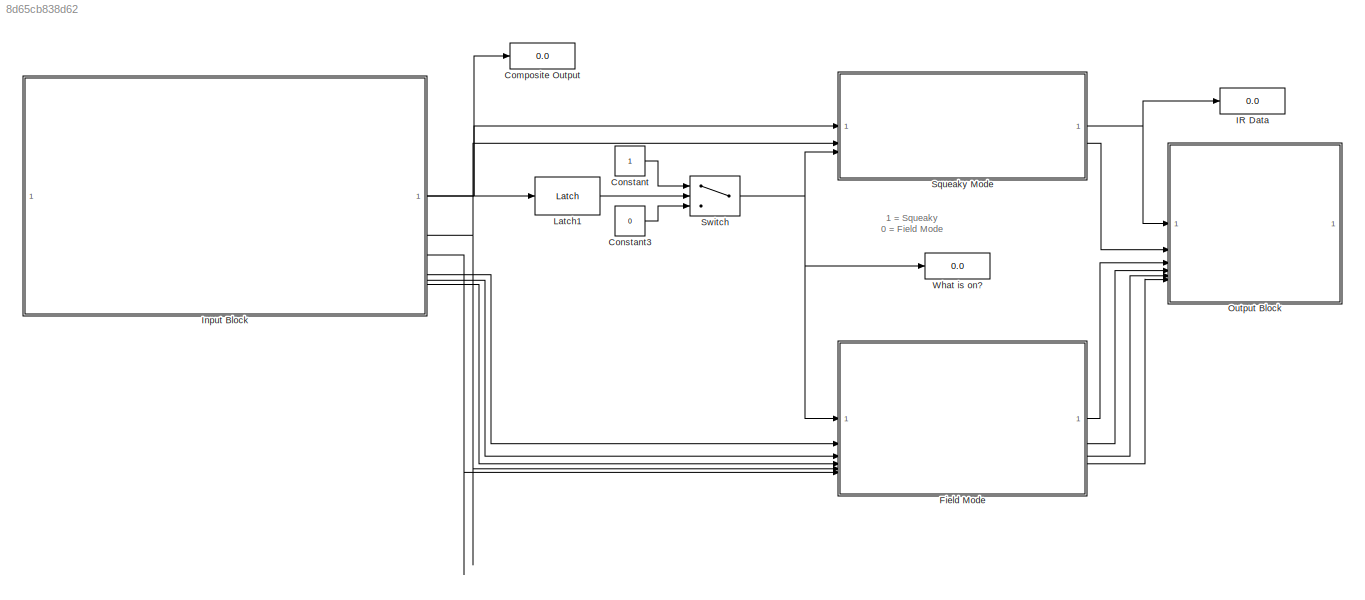
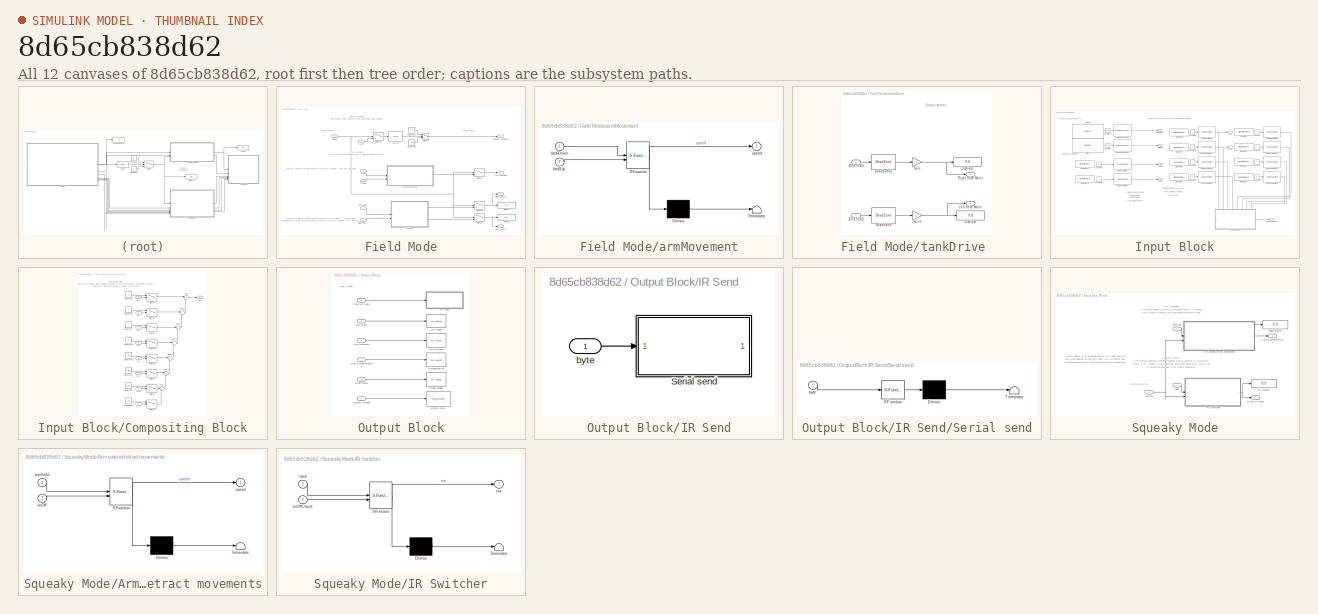
[diagram: thumbnail index - all 12 canvases of the model, root first then tree order]
MODEL slx_8d65cb838d62
KIND model
CONFIG AbsTol = auto
CONFIG EnableMultiTasking = off
CONFIG FixedStep = auto
CONFIG MaxStep = auto
CONFIG MinStep = auto
CONFIG RelTol = 1e-3
CONFIG SampleTimeConstraint = Unconstrained
CONFIG SolverName = VariableStepAuto
CONFIG StartTime = 0.0
CONFIG StopTime = 10.0
BLOCK [Display] Composite Output
  Decimation = 1
BLOCK [Constant] Constant
BLOCK [Constant] Constant3
  Value = 0
BLOCK [SubSystem] Field Mode
BLOCK [Inport] Field Mode/5-Down
  Port = 4
BLOCK [Inport] Field Mode/5-Up
  Port = 3
BLOCK [Inport] Field Mode/7-Left
  Port = 2
BLOCK [Outport] Field Mode/Arm Up//Down
  Port = 3
BLOCK [Outport] Field Mode/Battery Dropper
  Port = 2
BLOCK [Constant] Field Mode/Constant3
  Value = 90
BLOCK [Constant] Field Mode/Constant4
  Value = -90
BLOCK [Display] Field Mode/Display1
  Decimation = 1
BLOCK [Display] Field Mode/Display2
  Decimation = 1
BLOCK [Reference] Field Mode/Latch1  REF=vexcommonlib/Latch
  SourceBlock = vexcommonlib/Latch
  SourceType = Latch
BLOCK [Outport] Field Mode/Left Motor
BLOCK [Inport] Field Mode/LeftStick-y
  Port = 5
BLOCK [Inport] Field Mode/On//Off
BLOCK [Outport] Field Mode/Right Motor
  Port = 4
BLOCK [Inport] Field Mode/RightStick-y
  Port = 6
BLOCK [Switch] Field Mode/Switch1
  Criteria = u2 > Threshold
  InputSameDT = off
  SaturateOnIntegerOverflow = off
BLOCK [Switch] Field Mode/Switch2
  Criteria = u2 > Threshold
  InputSameDT = off
  SaturateOnIntegerOverflow = off
BLOCK [Switch] Field Mode/Switch3
  Criteria = u2 > Threshold
  InputSameDT = off
  SaturateOnIntegerOverflow = off
BLOCK [Switch] Field Mode/Switch4
  InputSameDT = off
  SaturateOnIntegerOverflow = off
  Threshold = 1
BLOCK [Switch] Field Mode/Switch5
  Criteria = u2 > Threshold
  InputSameDT = off
  SaturateOnIntegerOverflow = off
BLOCK [SubSystem] Field Mode/armMovement
  ErrorFcn = Stateflow.Translate.translate
  PermitHierarchicalResolution = ExplicitOnly
  SFBlockType = Chart
  TreatAsAtomicUnit = on
BLOCK [Demux] Field Mode/armMovement/ Demux 
  Outputs = 1
BLOCK [S-Function] Field Mode/armMovement/ SFunction 
  EnableBusSupport = on
  FunctionName = sf_sfun
  PortCounts = [2 2]
  SFcnIsStateOwnerBlock = off
  SFunctionDeploymentMode = off
  Tag = Stateflow S-Function 13
BLOCK [Terminator] Field Mode/armMovement/ Terminator 
BLOCK [Inport] Field Mode/armMovement/btn6Down
BLOCK [Inport] Field Mode/armMovement/btn6Up
  Port = 2
BLOCK [Outport] Field Mode/armMovement/speed
BLOCK [SubSystem] Field Mode/tankDrive 
  TreatAsAtomicUnit = on
BLOCK [DeadZone] Field Mode/tankDrive /Deadband
  LowerValue = -9
  UpperValue = 9
BLOCK [DeadZone] Field Mode/tankDrive /Deadband1
  LowerValue = -9
  UpperValue = 9
BLOCK [Display] Field Mode/tankDrive /Display1
  Decimation = 1
BLOCK [Display] Field Mode/tankDrive /Display2
  Decimation = 1
BLOCK [Gain] Field Mode/tankDrive /Gain
  Gain = -1
BLOCK [Gain] Field Mode/tankDrive /Gain1
  Gain = -1
BLOCK [Inport] Field Mode/tankDrive /JOYSTICK2
  Port = 2
BLOCK [Inport] Field Mode/tankDrive /JOYSTICK3
BLOCK [Outport] Field Mode/tankDrive /Left Drive Motor
  Port = 2
BLOCK [Outport] Field Mode/tankDrive /Right Drive Motor
BLOCK [Display] IR Data 
  Decimation = 1
  Format = hex (Stored Integer)
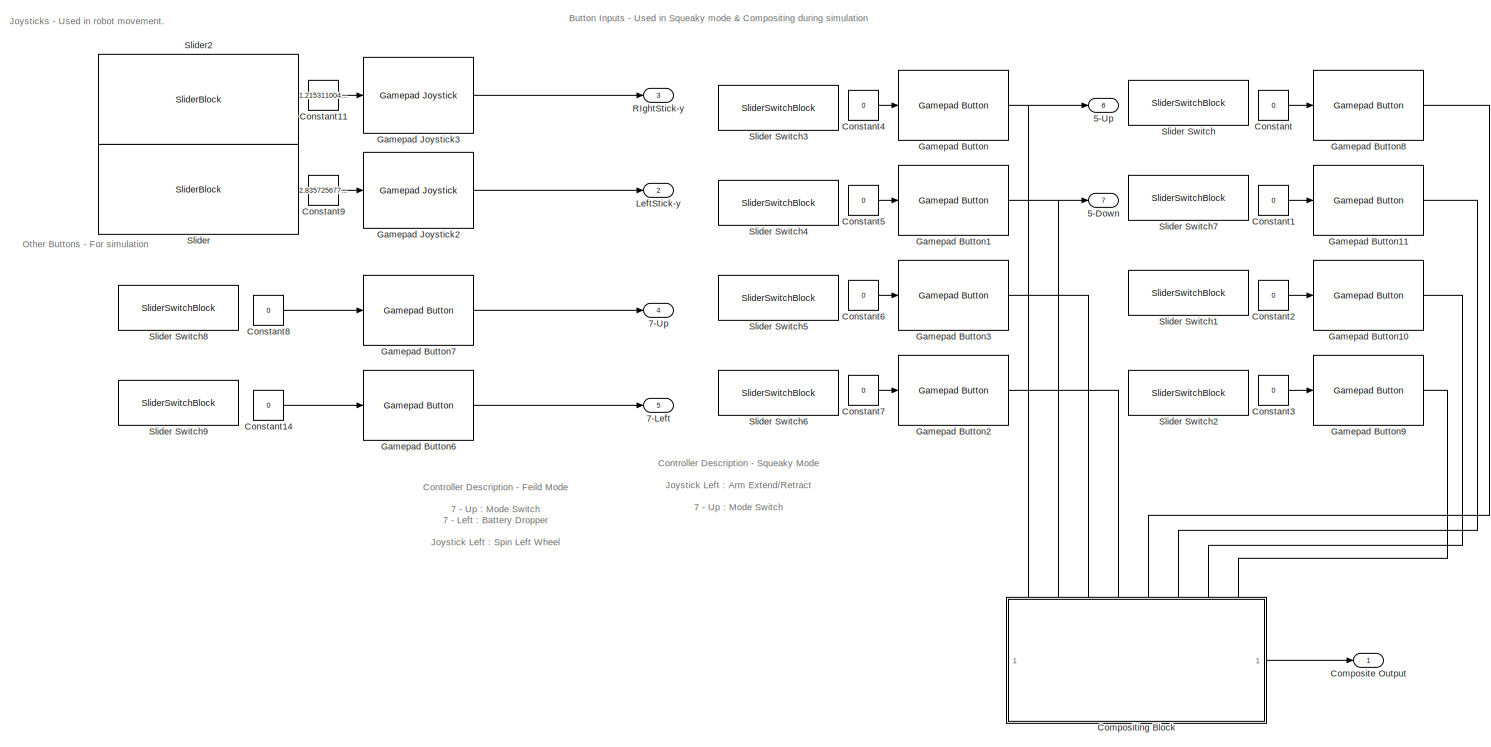
[diagram: Input Block - part 1/1, most of the canvas]
BLOCK [SubSystem] Input Block
BLOCK [Outport] Input Block/5-Down
  Port = 7
BLOCK [Outport] Input Block/5-Up
  Port = 6
BLOCK [Outport] Input Block/7-Left
  Port = 5
BLOCK [Outport] Input Block/7-Up
  Port = 4
BLOCK [Outport] Input Block/Composite Output
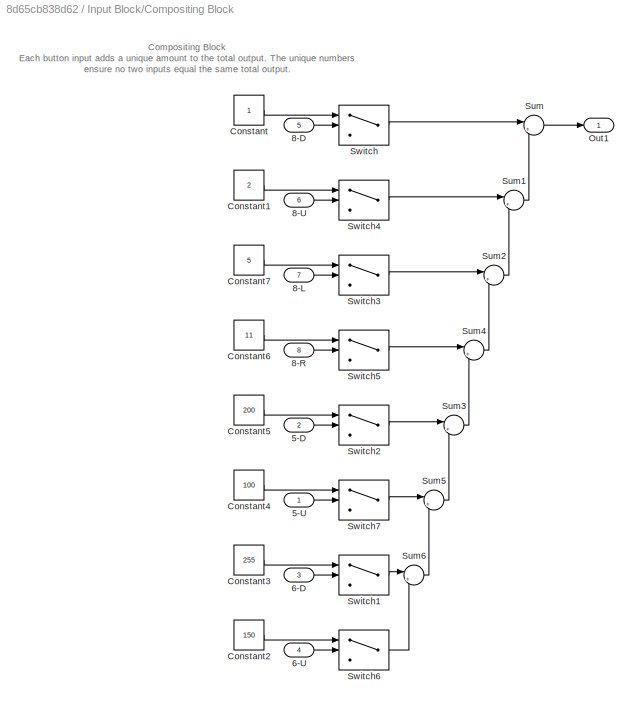
BLOCK [SubSystem] Input Block/Compositing Block
  PortSchema = {"entries":[{"content":{"sides":[{"content":{"connectorIds":[]},"type":"ConnectorPlacement.EquallySpacedRectSide","uuid":"9d2b5337-c4d4-4923-a699-a47fc21a7185"},{"content":{"connectorIds":["Out1"],"side":"RIGHT"},"type":"ConnectorPlacement.EquallySpacedRectSide","uuid":"56c06069-3940-4c56-b8fd-a4c3d4ffc63d"},{"content":{"connectorIds":["In1","In2","In3","In4","In5","In6","In7","In8"],"side":"TOP"}...<+282ch>
BLOCK [Inport] Input Block/Compositing Block/5-D
  Port = 2
BLOCK [Inport] Input Block/Compositing Block/5-U
BLOCK [Inport] Input Block/Compositing Block/6-D
  Port = 3
BLOCK [Inport] Input Block/Compositing Block/6-U
  Port = 4
BLOCK [Inport] Input Block/Compositing Block/8-D
  Port = 5
BLOCK [Inport] Input Block/Compositing Block/8-L
  Port = 7
BLOCK [Inport] Input Block/Compositing Block/8-R
  Port = 8
BLOCK [Inport] Input Block/Compositing Block/8-U
  Port = 6
BLOCK [Constant] Input Block/Compositing Block/Constant
BLOCK [Constant] Input Block/Compositing Block/Constant1
  Value = 2
BLOCK [Constant] Input Block/Compositing Block/Constant2
  Value = 150
BLOCK [Constant] Input Block/Compositing Block/Constant3
  Value = 255
BLOCK [Constant] Input Block/Compositing Block/Constant4
  Value = 100
BLOCK [Constant] Input Block/Compositing Block/Constant5
  Value = 200
BLOCK [Constant] Input Block/Compositing Block/Constant6
  Value = 11
BLOCK [Constant] Input Block/Compositing Block/Constant7
  Value = 5
BLOCK [Outport] Input Block/Compositing Block/Out1
BLOCK [Sum] Input Block/Compositing Block/Sum
  Inputs = |++
BLOCK [Sum] Input Block/Compositing Block/Sum1
  Inputs = |++
BLOCK [Sum] Input Block/Compositing Block/Sum2
  Inputs = |++
BLOCK [Sum] Input Block/Compositing Block/Sum3
  Inputs = |++
BLOCK [Sum] Input Block/Compositing Block/Sum4
  Inputs = |++
BLOCK [Sum] Input Block/Compositing Block/Sum5
  Inputs = |++
BLOCK [Sum] Input Block/Compositing Block/Sum6
  Inputs = |++
BLOCK [Switch] Input Block/Compositing Block/Switch
  Criteria = u2 > Threshold
  InputSameDT = off
  SaturateOnIntegerOverflow = off
BLOCK [Switch] Input Block/Compositing Block/Switch1
  Criteria = u2 > Threshold
  InputSameDT = off
  SaturateOnIntegerOverflow = off
BLOCK [Switch] Input Block/Compositing Block/Switch2
  Criteria = u2 > Threshold
  InputSameDT = off
  SaturateOnIntegerOverflow = off
BLOCK [Switch] Input Block/Compositing Block/Switch3
  Criteria = u2 > Threshold
  InputSameDT = off
  SaturateOnIntegerOverflow = off
BLOCK [Switch] Input Block/Compositing Block/Switch4
  Criteria = u2 > Threshold
  InputSameDT = off
  SaturateOnIntegerOverflow = off
BLOCK [Switch] Input Block/Compositing Block/Switch5
  Criteria = u2 > Threshold
  InputSameDT = off
  SaturateOnIntegerOverflow = off
BLOCK [Switch] Input Block/Compositing Block/Switch6
  Criteria = u2 > Threshold
  InputSameDT = off
  SaturateOnIntegerOverflow = off
BLOCK [Switch] Input Block/Compositing Block/Switch7
  Criteria = u2 > Threshold
  InputSameDT = off
  SaturateOnIntegerOverflow = off
BLOCK [Constant] Input Block/Constant
  Value = 0
BLOCK [Constant] Input Block/Constant1
  Value = 0
BLOCK [Constant] Input Block/Constant11
  Value = 1.215311004784695
BLOCK [Constant] Input Block/Constant14
  Value = 0
BLOCK [Constant] Input Block/Constant2
  Value = 0
BLOCK [Constant] Input Block/Constant3
  Value = 0
BLOCK [Constant] Input Block/Constant4
  Value = 0
BLOCK [Constant] Input Block/Constant5
  Value = 0
BLOCK [Constant] Input Block/Constant6
  Value = 0
BLOCK [Constant] Input Block/Constant7
  Value = 0
BLOCK [Constant] Input Block/Constant8
  Value = 0
BLOCK [Constant] Input Block/Constant9
  Value = 2.835725677830936
BLOCK [Reference] Input Block/Gamepad Button  REF=vexarmcortexlib/Gamepad/Gamepad Button
  SourceBlock = vexarmcortexlib/Gamepad/Gamepad Button
  SourceType = Gamepad Button
BLOCK [Reference] Input Block/Gamepad Button1  REF=vexarmcortexlib/Gamepad/Gamepad Button
  SourceBlock = vexarmcortexlib/Gamepad/Gamepad Button
  SourceType = Gamepad Button
BLOCK [Reference] Input Block/Gamepad Button10  REF=vexarmcortexlib/Gamepad/Gamepad Button
  SourceBlock = vexarmcortexlib/Gamepad/Gamepad Button
  SourceType = Gamepad Button
BLOCK [Reference] Input Block/Gamepad Button11  REF=vexarmcortexlib/Gamepad/Gamepad Button
  SourceBlock = vexarmcortexlib/Gamepad/Gamepad Button
  SourceType = Gamepad Button
BLOCK [Reference] Input Block/Gamepad Button2  REF=vexarmcortexlib/Gamepad/Gamepad Button
  SourceBlock = vexarmcortexlib/Gamepad/Gamepad Button
  SourceType = Gamepad Button
BLOCK [Reference] Input Block/Gamepad Button3  REF=vexarmcortexlib/Gamepad/Gamepad Button
  SourceBlock = vexarmcortexlib/Gamepad/Gamepad Button
  SourceType = Gamepad Button
BLOCK [Reference] Input Block/Gamepad Button6  REF=vexarmcortexlib/Gamepad/Gamepad Button
  SourceBlock = vexarmcortexlib/Gamepad/Gamepad Button
  SourceType = Gamepad Button
BLOCK [Reference] Input Block/Gamepad Button7  REF=vexarmcortexlib/Gamepad/Gamepad Button
  SourceBlock = vexarmcortexlib/Gamepad/Gamepad Button
  SourceType = Gamepad Button
BLOCK [Reference] Input Block/Gamepad Button8  REF=vexarmcortexlib/Gamepad/Gamepad Button
  SourceBlock = vexarmcortexlib/Gamepad/Gamepad Button
  SourceType = Gamepad Button
BLOCK [Reference] Input Block/Gamepad Button9  REF=vexarmcortexlib/Gamepad/Gamepad Button
  SourceBlock = vexarmcortexlib/Gamepad/Gamepad Button
  SourceType = Gamepad Button
BLOCK [Reference] Input Block/Gamepad Joystick2  REF=vexarmcortexlib/Gamepad/Gamepad Joystick
  SourceBlock = vexarmcortexlib/Gamepad/Gamepad Joystick
  SourceType = Gamepad Joystick
BLOCK [Reference] Input Block/Gamepad Joystick3  REF=vexarmcortexlib/Gamepad/Gamepad Joystick
  SourceBlock = vexarmcortexlib/Gamepad/Gamepad Joystick
  SourceType = Gamepad Joystick
BLOCK [Outport] Input Block/LeftStick-y
  Port = 2
BLOCK [Outport] Input Block/RIghtStick-y
  Port = 3
BLOCK [SliderBlock] Input Block/Slider
  ScaleMax = 127
  ScaleMin = -127
BLOCK [SliderSwitchBlock] Input Block/Slider Switch
BLOCK [SliderSwitchBlock] Input Block/Slider Switch1
BLOCK [SliderSwitchBlock] Input Block/Slider Switch2
BLOCK [SliderSwitchBlock] Input Block/Slider Switch3
BLOCK [SliderSwitchBlock] Input Block/Slider Switch4
BLOCK [SliderSwitchBlock] Input Block/Slider Switch5
BLOCK [SliderSwitchBlock] Input Block/Slider Switch6
BLOCK [SliderSwitchBlock] Input Block/Slider Switch7
BLOCK [SliderSwitchBlock] Input Block/Slider Switch8
BLOCK [SliderSwitchBlock] Input Block/Slider Switch9
BLOCK [SliderBlock] Input Block/Slider2
  ScaleMax = 127
  ScaleMin = -127
BLOCK [Reference] Latch1  REF=RoboticsPlayground/Utilities and Hardware/Latch
  SourceBlock = RoboticsPlayground/Utilities and Hardware/Latch
  SourceProductName = Robotics Playground
BLOCK [SubSystem] Output Block
BLOCK [Reference] Output Block/Arm Up Down  REF=vexarmcortexlib/Actuators/DC Motor
  SourceBlock = vexarmcortexlib/Actuators/DC Motor
  SourceType = DC Motor
BLOCK [Inport] Output Block/Arm Up//Down 
  Port = 5
BLOCK [Reference] Output Block/Battery Drop  REF=vexarmcortexlib/Actuators/Servo Motor
  SourceBlock = vexarmcortexlib/Actuators/Servo Motor
  SourceType = Servo Motor
BLOCK [Inport] Output Block/Battery Dropper
  Port = 4
BLOCK [Inport] Output Block/Claw Extend//Retract
  Port = 2
BLOCK [Reference] Output Block/Extend//Retract  REF=vexarmcortexlib/Actuators/DC Motor
  SourceBlock = vexarmcortexlib/Actuators/DC Motor
  SourceType = DC Motor
BLOCK [Inport] Output Block/Final IR Data
BLOCK [SubSystem] Output Block/IR Send
BLOCK [SubSystem] Output Block/IR Send/Serial send
  ErrorFcn = Stateflow.Translate.translate
  PermitHierarchicalResolution = ExplicitOnly
  SFBlockType = MATLAB Function
  TreatAsAtomicUnit = on
BLOCK [Demux] Output Block/IR Send/Serial send/ Demux 
  Outputs = 1
BLOCK [S-Function] Output Block/IR Send/Serial send/ SFunction 
  EnableBusSupport = on
  FunctionName = sf_sfun
  PortCounts = [1 1]
  SFcnIsStateOwnerBlock = off
  SFunctionDeploymentMode = off
  Tag = Stateflow S-Function 3
BLOCK [Terminator] Output Block/IR Send/Serial send/ Terminator 
BLOCK [Inport] Output Block/IR Send/Serial send/byte
BLOCK [Inport] Output Block/IR Send/byte
  OutDataTypeStr = uint8
  PortDimensions = [1 1]
BLOCK [Inport] Output Block/Left Motor
  Port = 3
BLOCK [Reference] Output Block/Left Wheel  REF=vexarmcortexlib/Actuators/DC Motor
  SourceBlock = vexarmcortexlib/Actuators/DC Motor
  SourceType = DC Motor
BLOCK [Inport] Output Block/Right Motor
  Port = 6
BLOCK [Reference] Output Block/Right Wheel  REF=vexarmcortexlib/Actuators/DC Motor
  SourceBlock = vexarmcortexlib/Actuators/DC Motor
  SourceType = DC Motor
BLOCK [SubSystem] Squeaky Mode
BLOCK [SubSystem] Squeaky Mode/Arm extend//retract movements
  ErrorFcn = Stateflow.Translate.translate
  PermitHierarchicalResolution = ExplicitOnly
  SFBlockType = Chart
  TreatAsAtomicUnit = on
BLOCK [Demux] Squeaky Mode/Arm extend//retract movements/ Demux 
  Outputs = 1
BLOCK [S-Function] Squeaky Mode/Arm extend//retract movements/ SFunction 
  EnableBusSupport = on
  FunctionName = sf_sfun
  PortCounts = [2 2]
  SFcnIsStateOwnerBlock = off
  SFunctionDeploymentMode = off
  Tag = Stateflow S-Function 2
BLOCK [Terminator] Squeaky Mode/Arm extend//retract movements/ Terminator 
BLOCK [Inport] Squeaky Mode/Arm extend//retract movements/joystickL
BLOCK [Inport] Squeaky Mode/Arm extend//retract movements/onOff
  Port = 2
BLOCK [Outport] Squeaky Mode/Arm extend//retract movements/speed
BLOCK [Outport] Squeaky Mode/Claw Extend//Retract
  Port = 2
BLOCK [Outport] Squeaky Mode/Final IR Data
BLOCK [SubSystem] Squeaky Mode/IR Switcher
  ErrorFcn = Stateflow.Translate.translate
  PermitHierarchicalResolution = ExplicitOnly
  SFBlockType = Chart
  TreatAsAtomicUnit = on
BLOCK [Demux] Squeaky Mode/IR Switcher/ Demux 
  Outputs = 1
BLOCK [S-Function] Squeaky Mode/IR Switcher/ SFunction 
  EnableBusSupport = on
  FunctionName = sf_sfun
  PortCounts = [2 2]
  SFcnIsStateOwnerBlock = off
  SFunctionDeploymentMode = off
  Tag = Stateflow S-Function 6
BLOCK [Terminator] Squeaky Mode/IR Switcher/ Terminator 
BLOCK [Inport] Squeaky Mode/IR Switcher/input
BLOCK [Inport] Squeaky Mode/IR Switcher/onOffCheck
  Port = 2
BLOCK [Outport] Squeaky Mode/IR Switcher/out
BLOCK [Display] Squeaky Mode/IR display
  Decimation = 1
  Format = hex (Stored Integer)
BLOCK [Inport] Squeaky Mode/JoystickL
  Port = 2
BLOCK [Inport] Squeaky Mode/On//Off
  Port = 3
BLOCK [Inport] Squeaky Mode/lnput
BLOCK [Display] Squeaky Mode/speed display
  Decimation = 1
BLOCK [Switch] Switch
  Criteria = u2 ~= 0
  InputSameDT = off
  SaturateOnIntegerOverflow = off
BLOCK [Display] What is on?
  Decimation = 1
ANNOTATION (root): Mode switcher When the button 7-Up is pressed the output switches from 0 to 1 or vice versa
ANNOTATION (root): 1 = Squeaky 0 = Field Mode
ANNOTATION Field Mode: Tank Drive Uses two joystick inputs to control the drive motors and move the robot.
ANNOTATION Field Mode: The part shown in this illustration is the Battery Dropper. The code controlling this part can be found in the top lavender box
ANNOTATION Field Mode: The part shown in this illustration is the arm of our robot. It is used when manipulating the order boxes and when attaching the custom squeaky arm. The code controlling this part can be found in the middle blue box.
ANNOTATION Field Mode: Arm Up/Down This system uses two buttons to raise and lower the arm.
ANNOTATION Field Mode: Battery Dropper This system spins a servo to put batteries onto Squeaky.
ANNOTATION Field Mode: On/Off switch
ANNOTATION Field Mode: Output Blocks
ANNOTATION Field Mode/tankDrive : Output section
ANNOTATION Input Block: Button Inputs - Used in Squeaky mode & Compositing during simulation
ANNOTATION Input Block: Controller Description - Squeaky Mode Joystick Left : Arm Extend/Retract 7 - Up : Mode Switch 5 - Up : Drive Speed Low 5 - Down : Drive Speed High 5 - Up & 5 - Down : Drive Speed Medium 6 - Up : Rotation Speed Low 6 - Down : Rotation Speed High 6 - Up & 6 - Down : Rotation Speed Medium 8 - Up : Test IR Signal 8 - Down : Middle Stick to Drive 8 - Right : Middle Stick to Rotate 8 - Left : Middle Sti...<+10ch>
ANNOTATION Input Block: Controller Description - Feild Mode 7 - Up : Mode Switch 7 - Left : Battery Dropper Joystick Left : Spin Left Wheel Joystick Right : Spin RIght Wheel 5 - Up : Arm Up 6 - Down : Arm Down
ANNOTATION Input Block: Joysticks - Used in robot movement.
ANNOTATION Input Block: Other Buttons - For simulation
ANNOTATION Input Block/Compositing Block: Compositing Block Each button input adds a unique amount to the total output. The unique numbers ensure no two inputs equal the same total output.
ANNOTATION Output Block: Final Outputs
ANNOTATION Squeaky Mode: The part shown is the telescoping arm. Our team uses this part when opperating the field robot from the control box. The code controlling it can be found in the top lavender box
ANNOTATION Squeaky Mode: Arm Telescope This system uses a joystick to telescope the arm in and out. This is used to interact with the gamefield's control box.
ANNOTATION Squeaky Mode: On/Off Switch
ANNOTATION Squeaky Mode: Squeaky Controls This system controls whether Squeaky's central joystick is in the drive, rotate, or lift modes & the Speed that each mode operates at. This is set by the buttons defined in the "Inputs" subsystem.
LINE Constant3:1 -> Switch:3
LINE Constant:1 -> Switch:1
LINE Field Mode/5-Down:1 -> Field Mode/armMovement:2
LINE Field Mode/5-Up:1 -> Field Mode/armMovement:1
LINE Field Mode/7-Left:1 -> Field Mode/Switch5:3
LINE Field Mode/Constant3:1 -> Field Mode/Switch4:1
LINE Field Mode/Constant4:1 -> Field Mode/Switch4:3
LINE Field Mode/Latch1:1 -> Field Mode/Switch4:2
LINE Field Mode/LeftStick-y:1 -> Field Mode/tankDrive :1
NET Field Mode/On//Off:1 -> Field Mode/Switch1:2, Field Mode/Switch2:2, Field Mode/Switch3:2, Field Mode/Switch5:2
LINE Field Mode/RightStick-y:1 -> Field Mode/tankDrive :2
LINE Field Mode/Switch1:1 -> Field Mode/Arm Up//Down:1
NET Field Mode/Switch2:1 -> Field Mode/Display1:1, Field Mode/Left Motor:1
NET Field Mode/Switch3:1 -> Field Mode/Display2:1, Field Mode/Right Motor:1
LINE Field Mode/Switch4:1 -> Field Mode/Battery Dropper:1
LINE Field Mode/Switch5:1 -> Field Mode/Latch1:1
LINE Field Mode/armMovement:1 -> Field Mode/Switch1:3
LINE Field Mode/tankDrive /Deadband1:1 -> Field Mode/tankDrive /Gain:1
LINE Field Mode/tankDrive /Deadband:1 -> Field Mode/tankDrive /Gain1:1
NET Field Mode/tankDrive /Gain1:1 -> Field Mode/tankDrive /Display2:1, Field Mode/tankDrive /Left Drive Motor:1
NET Field Mode/tankDrive /Gain:1 -> Field Mode/tankDrive /Display1:1, Field Mode/tankDrive /Right Drive Motor:1
LINE Field Mode/tankDrive /JOYSTICK2:1 -> Field Mode/tankDrive /Deadband:1
LINE Field Mode/tankDrive /JOYSTICK3:1 -> Field Mode/tankDrive /Deadband1:1
LINE Field Mode/tankDrive :1 -> Field Mode/Switch3:3
LINE Field Mode/tankDrive :2 -> Field Mode/Switch2:3
LINE Field Mode:1 -> Output Block:3
LINE Field Mode:2 -> Output Block:4
LINE Field Mode:3 -> Output Block:5
LINE Field Mode:4 -> Output Block:6
LINE Input Block/Compositing Block/5-D:1 -> Input Block/Compositing Block/Switch2:2
LINE Input Block/Compositing Block/5-U:1 -> Input Block/Compositing Block/Switch7:2
LINE Input Block/Compositing Block/6-D:1 -> Input Block/Compositing Block/Switch1:2
LINE Input Block/Compositing Block/6-U:1 -> Input Block/Compositing Block/Switch6:2
LINE Input Block/Compositing Block/8-D:1 -> Input Block/Compositing Block/Switch:2
LINE Input Block/Compositing Block/8-L:1 -> Input Block/Compositing Block/Switch3:2
LINE Input Block/Compositing Block/8-R:1 -> Input Block/Compositing Block/Switch5:2
LINE Input Block/Compositing Block/8-U:1 -> Input Block/Compositing Block/Switch4:2
LINE Input Block/Compositing Block/Constant1:1 -> Input Block/Compositing Block/Switch4:1
LINE Input Block/Compositing Block/Constant2:1 -> Input Block/Compositing Block/Switch6:1
LINE Input Block/Compositing Block/Constant3:1 -> Input Block/Compositing Block/Switch1:1
LINE Input Block/Compositing Block/Constant4:1 -> Input Block/Compositing Block/Switch7:1
LINE Input Block/Compositing Block/Constant5:1 -> Input Block/Compositing Block/Switch2:1
LINE Input Block/Compositing Block/Constant6:1 -> Input Block/Compositing Block/Switch5:1
LINE Input Block/Compositing Block/Constant7:1 -> Input Block/Compositing Block/Switch3:1
LINE Input Block/Compositing Block/Constant:1 -> Input Block/Compositing Block/Switch:1
LINE Input Block/Compositing Block/Sum1:1 -> Input Block/Compositing Block/Sum:2
LINE Input Block/Compositing Block/Sum2:1 -> Input Block/Compositing Block/Sum1:2
LINE Input Block/Compositing Block/Sum3:1 -> Input Block/Compositing Block/Sum4:2
LINE Input Block/Compositing Block/Sum4:1 -> Input Block/Compositing Block/Sum2:2
LINE Input Block/Compositing Block/Sum5:1 -> Input Block/Compositing Block/Sum3:2
LINE Input Block/Compositing Block/Sum6:1 -> Input Block/Compositing Block/Sum5:2
LINE Input Block/Compositing Block/Sum:1 -> Input Block/Compositing Block/Out1:1
LINE Input Block/Compositing Block/Switch1:1 -> Input Block/Compositing Block/Sum6:1
LINE Input Block/Compositing Block/Switch2:1 -> Input Block/Compositing Block/Sum3:1
LINE Input Block/Compositing Block/Switch3:1 -> Input Block/Compositing Block/Sum2:1
LINE Input Block/Compositing Block/Switch4:1 -> Input Block/Compositing Block/Sum1:1
LINE Input Block/Compositing Block/Switch5:1 -> Input Block/Compositing Block/Sum4:1
LINE Input Block/Compositing Block/Switch6:1 -> Input Block/Compositing Block/Sum6:2
LINE Input Block/Compositing Block/Switch7:1 -> Input Block/Compositing Block/Sum5:1
LINE Input Block/Compositing Block/Switch:1 -> Input Block/Compositing Block/Sum:1
LINE Input Block/Compositing Block:1 -> Input Block/Composite Output:1
LINE Input Block/Constant11:1 -> Input Block/Gamepad Joystick3:1
LINE Input Block/Constant14:1 -> Input Block/Gamepad Button6:1
LINE Input Block/Constant1:1 -> Input Block/Gamepad Button11:1
LINE Input Block/Constant2:1 -> Input Block/Gamepad Button10:1
LINE Input Block/Constant3:1 -> Input Block/Gamepad Button9:1
LINE Input Block/Constant4:1 -> Input Block/Gamepad Button:1
LINE Input Block/Constant5:1 -> Input Block/Gamepad Button1:1
LINE Input Block/Constant6:1 -> Input Block/Gamepad Button3:1
LINE Input Block/Constant7:1 -> Input Block/Gamepad Button2:1
LINE Input Block/Constant8:1 -> Input Block/Gamepad Button7:1
LINE Input Block/Constant9:1 -> Input Block/Gamepad Joystick2:1
LINE Input Block/Constant:1 -> Input Block/Gamepad Button8:1
LINE Input Block/Gamepad Button10:1 -> Input Block/Compositing Block:7
LINE Input Block/Gamepad Button11:1 -> Input Block/Compositing Block:6
NET Input Block/Gamepad Button1:1 -> Input Block/5-Down:1, Input Block/Compositing Block:2
LINE Input Block/Gamepad Button2:1 -> Input Block/Compositing Block:4
LINE Input Block/Gamepad Button3:1 -> Input Block/Compositing Block:3
LINE Input Block/Gamepad Button6:1 -> Input Block/7-Left:1
LINE Input Block/Gamepad Button7:1 -> Input Block/7-Up:1
LINE Input Block/Gamepad Button8:1 -> Input Block/Compositing Block:5
LINE Input Block/Gamepad Button9:1 -> Input Block/Compositing Block:8
NET Input Block/Gamepad Button:1 -> Input Block/5-Up:1, Input Block/Compositing Block:1
LINE Input Block/Gamepad Joystick2:1 -> Input Block/LeftStick-y:1
LINE Input Block/Gamepad Joystick3:1 -> Input Block/RIghtStick-y:1
NET Input Block:1 -> Composite Output:1, Squeaky Mode:1
NET Input Block:2 -> Field Mode:5, Squeaky Mode:2
LINE Input Block:3 -> Field Mode:6
LINE Input Block:4 -> Latch1:1
LINE Input Block:5 -> Field Mode:2
LINE Input Block:6 -> Field Mode:3
LINE Input Block:7 -> Field Mode:4
LINE Latch1:1 -> Switch:2
LINE Output Block/Arm Up//Down :1 -> Output Block/Arm Up Down:1
LINE Output Block/Battery Dropper:1 -> Output Block/Battery Drop:1
LINE Output Block/Claw Extend//Retract:1 -> Output Block/Extend//Retract:1
LINE Output Block/Final IR Data:1 -> Output Block/IR Send:1
LINE Output Block/IR Send/byte:1 -> Output Block/IR Send/Serial send:1
LINE Output Block/Left Motor:1 -> Output Block/Left Wheel:1
LINE Output Block/Right Motor:1 -> Output Block/Right Wheel:1
NET Squeaky Mode/Arm extend//retract movements:1 -> Squeaky Mode/Claw Extend//Retract:1, Squeaky Mode/speed display:1
NET Squeaky Mode/IR Switcher:1 -> Squeaky Mode/Final IR Data:1, Squeaky Mode/IR display:1
LINE Squeaky Mode/JoystickL:1 -> Squeaky Mode/Arm extend//retract movements:1
NET Squeaky Mode/On//Off:1 -> Squeaky Mode/Arm extend//retract movements:2, Squeaky Mode/IR Switcher:2
LINE Squeaky Mode/lnput:1 -> Squeaky Mode/IR Switcher:1
NET Squeaky Mode:1 -> IR Data :1, Output Block:1
LINE Squeaky Mode:2 -> Output Block:2
NET Switch:1 -> Field Mode:1, Squeaky Mode:3, What is on?:1
note: NET lines group one-source signal fan-out (src -> all destinations, sorted); 1:1 wires keep LINE
CHART Field Mode/armMovement states=3 transitions=7
  STATE_LABEL 'ARMDOWN\nentry:\nspeed = -50;'
  STATE_LABEL 'STOPPED\nentry:\nspeed = 0;'
  STATE_LABEL 'ARMUP\nentry:\nspeed = 140;'
CHART Squeaky Mode/Arm extend//retract movements states=3 transitions=5
  STATE_LABEL 'armExtend\nentry:\nspeed = 80;'
  STATE_LABEL 'noArm\nentry:\nspeed = 0;'
  STATE_LABEL 'armRetract\nentry:\nspeed = -80;'
CHART Output Block/IR Send/Serial send states=1 transitions=1
  STATE_LABEL 'eML_blk_kernel()'
  STATE_LABEL "SCRIPT:\nfunction fcn(byte)\n% Serial send single byte\n%#codegen\n\n% Config\nport = 'uart1';\nbaud = uint32(600);\n\npersistent isFirstRun\n\nif coder.target('Rtw')\n    coder.cinclude('API.h');\n    coder.cinclude('string.h');\n    file = coder.opaque('FILE *', port,'HeaderFile','API.h');\n\n    if isempty(isFirstRun)\n        % first time setup\n        isFirstRun = false;\n\n        flags = coder.opaque('uint16'...<+126ch>"
CHART Squeaky Mode/IR Switcher states=14 transitions=21
  STATE_LABEL 'Drive Speed Adjustments'
  STATE_LABEL 'drivespeedHigh\nentry:\nout = 0xC3;'
  STATE_LABEL 'drivespeedLow\nentry:\nout = 0x99;'
  STATE_LABEL 'drivespeedMed\nentry:\nout = 0xA5;'
  STATE_LABEL 'drivespeedHigh\nentry:\nout = 0xC3;'
  STATE_LABEL 'drivespeedLow\nentry:\nout = 0x99;'
  STATE_LABEL 'drivespeedMed\nentry:\nout = 0xA5;'
  STATE_LABEL 'onOff\nentry:\nout = 0x00;'
  STATE_LABEL 'Squeaky Movements'
  STATE_LABEL 'lift_2\nentry:\nout = 0x5A;\n'
  STATE_LABEL 'drive_2\nentry:\nout = 0x3C;'
  STATE_LABEL 'rotate_2\nentry:\nout = 0x33;'
  STATE_LABEL 'lift_2\nentry:\nout = 0x5A;\n'
  STATE_LABEL 'drive_2\nentry:\nout = 0x3C;'
  STATE_LABEL 'rotate_2\nentry:\nout = 0x33;'
  STATE_LABEL 'irTestDefault\nentry:\nout = 0xF0;\n'
  STATE_LABEL 'Rotational Adjustments'
  STATE_LABEL 'rotatespeedHigh\nentry:\nout = 0x0F;'
  STATE_LABEL 'rotatespeedLow\nentry:\nout = 0x69;'
  STATE_LABEL 'rotatespeedMed\nentry:\nout = 0x96;'
  STATE_LABEL 'rotatespeedHigh\nentry:\nout = 0x0F;'
  STATE_LABEL 'rotatespeedLow\nentry:\nout = 0x69;'
  STATE_LABEL 'rotatespeedMed\nentry:\nout = 0x96;'
CHART  states=0 transitions=0
CHART  states=0 transitions=0
CHART  states=0 transitions=0
CHART  states=0 transitions=0
